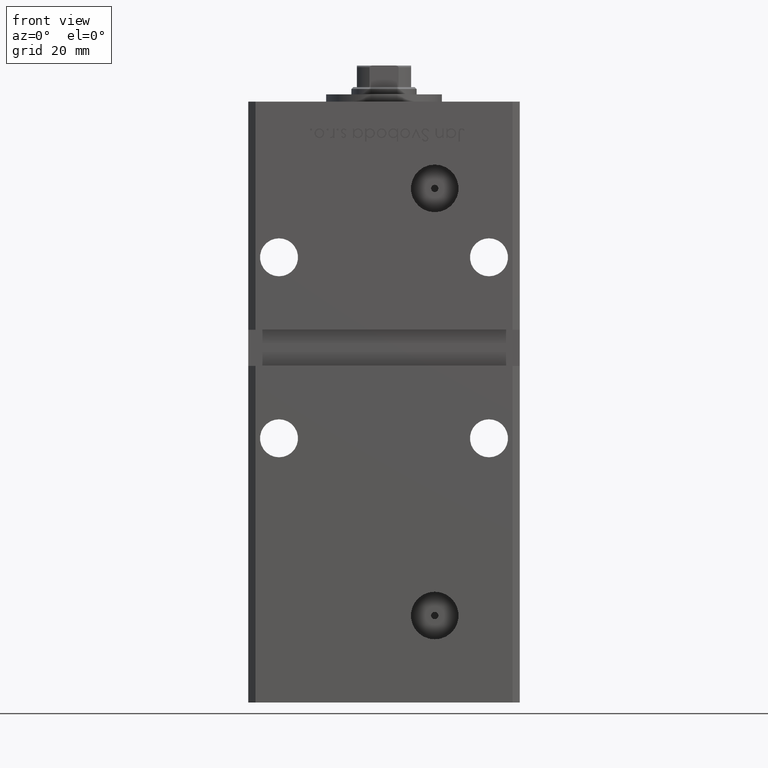
[diagram: clean part render]
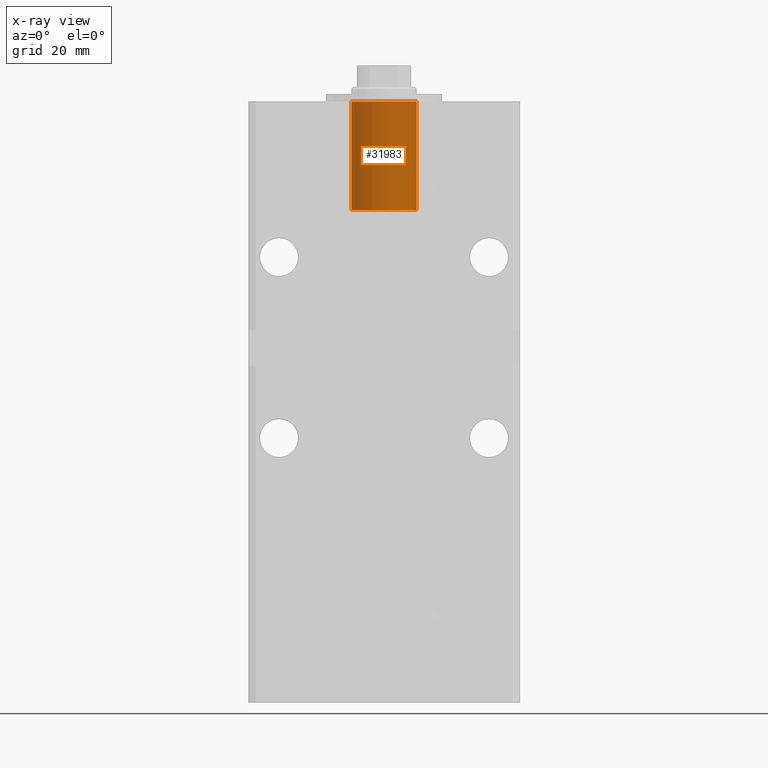
[diagram: x-ray — body ghosted, one internal face saturated and labeled with its STEP entity id]
A machine part, front view, then the same camera in x-ray: the body is ghosted and one INTERNAL B-rep face — a face not visible from any outside direction — is saturated and labeled: STEP entity #31983.
In plain terms, the highlighted cylindrical surface (edge-blend (fillet) strip) has radius 9 mm, axis along (0, 0, 1).
Its self-contained STEP definition (entity closure, byte-faithful):
#2326 = DIRECTION ( 'NONE',  ( 1.000000000000000000, 0.000000000000000000, 0.000000000000000000 ) ) ;
#5179 = VERTEX_POINT ( 'NONE', #23307 ) ;
#5448 = DIRECTION ( 'NONE',  ( 0.000000000000000000, 0.000000000000000000, 1.000000000000000000 ) ) ;
#5467 = CYLINDRICAL_SURFACE ( 'NONE', #20283, 8.999999999999996447 ) ;
#6074 = CARTESIAN_POINT ( 'NONE',  ( 8.999999999999996447, -6.938893903907228378E-15, 0.000000000000000000 ) ) ;
#6360 = CARTESIAN_POINT ( 'NONE',  ( 0.000000000000000000, -6.938893903907228378E-15, 0.000000000000000000 ) ) ;
#8387 = VERTEX_POINT ( 'NONE', #25008 ) ;
#9161 = CARTESIAN_POINT ( 'NONE',  ( 8.999999999999996447, -6.938893903907228378E-15, -30.00000000000000000 ) ) ;
#9256 = CARTESIAN_POINT ( 'NONE',  ( -8.999999999999996447, -5.836711784674611255E-15, -30.00000000000000000 ) ) ;
#12039 = EDGE_CURVE ( 'NONE', #24379, #8387, #29688, .T. ) ;
#13317 = ORIENTED_EDGE ( 'NONE', *, *, #51856, .T. ) ;
#18309 = LINE ( 'NONE', #9161, #27963 ) ;
#20283 = AXIS2_PLACEMENT_3D ( 'NONE', #38248, #43085, #30461 ) ;
#20734 = ORIENTED_EDGE ( 'NONE', *, *, #31257, .F. ) ;
#21846 = DIRECTION ( 'NONE',  ( 1.000000000000000000, 0.000000000000000000, 0.000000000000000000 ) ) ;
#22901 = CARTESIAN_POINT ( 'NONE',  ( 0.000000000000000000, -6.938893903907228378E-15, -30.00000000000000000 ) ) ;
#23307 = CARTESIAN_POINT ( 'NONE',  ( 8.999999999999996447, -6.938893903907228378E-15, -30.00000000000000000 ) ) ;
#23613 = VERTEX_POINT ( 'NONE', #6074 ) ;
#24379 = VERTEX_POINT ( 'NONE', #45706 ) ;
#25008 = CARTESIAN_POINT ( 'NONE',  ( -8.999999999999996447, -5.836711784674611255E-15, 0.000000000000000000 ) ) ;
#25821 = CIRCLE ( 'NONE', #41309, 8.999999999999996447 ) ;
#26817 = ORIENTED_EDGE ( 'NONE', *, *, #45223, .F. ) ;
#27963 = VECTOR ( 'NONE', #45988, 1000.000000000000000 ) ;
#29688 = LINE ( 'NONE', #9256, #52451 ) ;
#30461 = DIRECTION ( 'NONE',  ( 1.000000000000000000, 0.000000000000000000, 0.000000000000000000 ) ) ;
#31086 = DIRECTION ( 'NONE',  ( 0.000000000000000000, 0.000000000000000000, 1.000000000000000000 ) ) ;
#31257 = EDGE_CURVE ( 'NONE', #5179, #23613, #18309, .T. ) ;
#31983 = ADVANCED_FACE ( 'NONE', ( #38790 ), #5467, .F. ) ;
#32474 = CIRCLE ( 'NONE', #36775, 8.999999999999996447 ) ;
#36775 = AXIS2_PLACEMENT_3D ( 'NONE', #22901, #5448, #21846 ) ;
#38248 = CARTESIAN_POINT ( 'NONE',  ( 0.000000000000000000, -6.938893903907228378E-15, -30.00000000000000000 ) ) ;
#38790 = FACE_OUTER_BOUND ( 'NONE', #49769, .T. ) ;
#41309 = AXIS2_PLACEMENT_3D ( 'NONE', #6360, #31086, #2326 ) ;
#42801 = ORIENTED_EDGE ( 'NONE', *, *, #12039, .T. ) ;
#43085 = DIRECTION ( 'NONE',  ( -0.000000000000000000, -0.000000000000000000, 1.000000000000000000 ) ) ;
#45223 = EDGE_CURVE ( 'NONE', #24379, #5179, #32474, .T. ) ;
#45706 = CARTESIAN_POINT ( 'NONE',  ( -8.999999999999996447, -5.836711784674611255E-15, -30.00000000000000000 ) ) ;
#45988 = DIRECTION ( 'NONE',  ( -0.000000000000000000, -0.000000000000000000, 1.000000000000000000 ) ) ;
#49611 = DIRECTION ( 'NONE',  ( -0.000000000000000000, -0.000000000000000000, 1.000000000000000000 ) ) ;
#49769 = EDGE_LOOP ( 'NONE', ( #26817, #42801, #13317, #20734 ) ) ;
#51856 = EDGE_CURVE ( 'NONE', #8387, #23613, #25821, .T. ) ;
#52451 = VECTOR ( 'NONE', #49611, 1000.000000000000000 ) ;